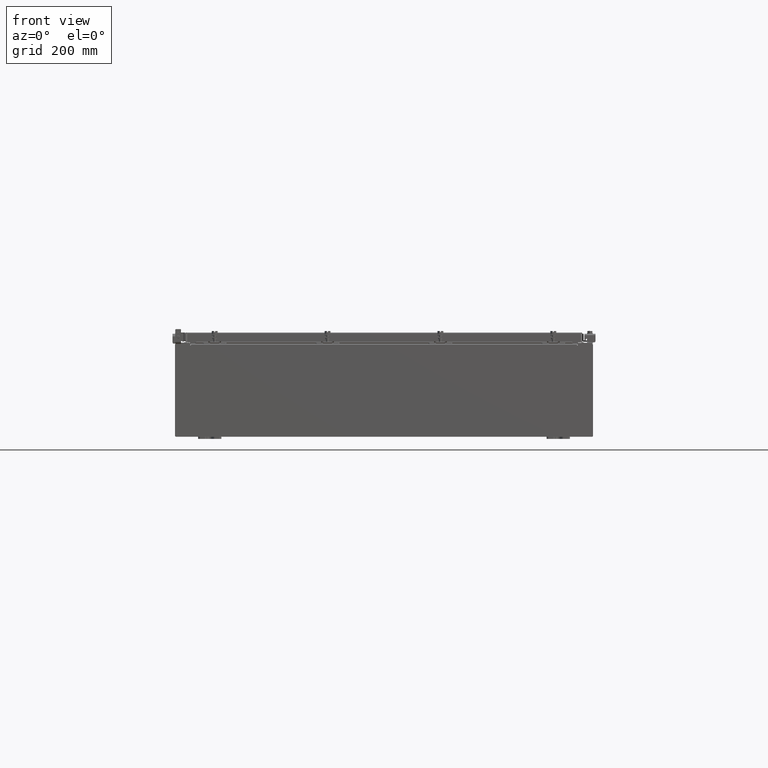
[diagram: clean part render]
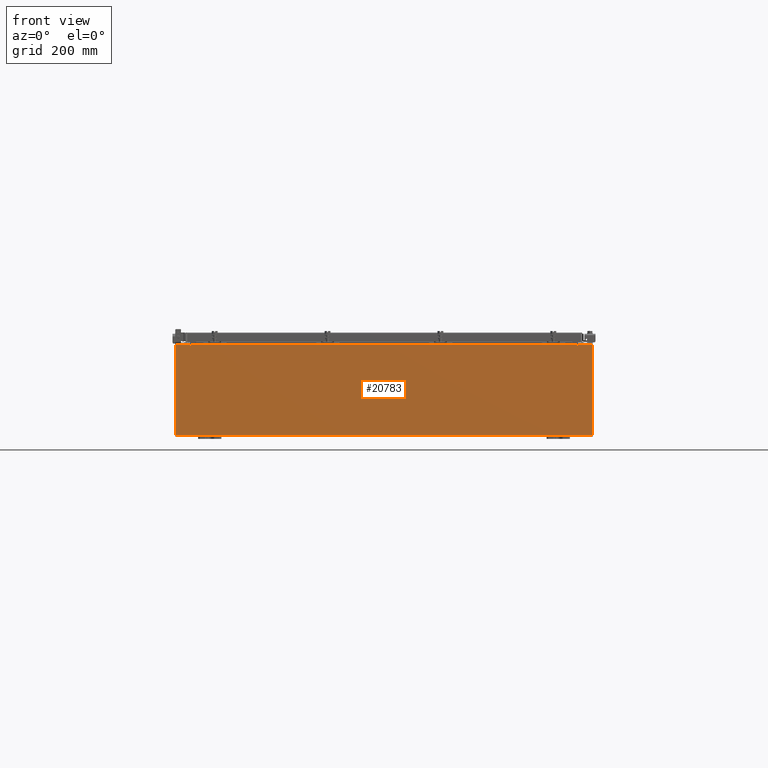
[diagram: same view with one face highlighted and labeled with its STEP entity id]
A machine part, front view. The second image highlights one B-rep face of the part: STEP entity #20783.
In plain terms, the highlighted planar face has unit normal (-0, 1, -0).
Its self-contained STEP definition (entity closure, byte-faithful):
#37 = VECTOR ( 'NONE', #10975, 39.37007874015748100 ) ;
#57 = CIRCLE ( 'NONE', #3972, 0.01867499999999949400 ) ;
#421 = LINE ( 'NONE', #1941, #10909 ) ;
#553 = CARTESIAN_POINT ( 'NONE',  ( -16.65587499999999800, 0.0000000000000000000, 3.874950000000000100 ) ) ;
#1320 = DIRECTION ( 'NONE',  ( 1.000000000000000000, 0.0000000000000000000, 0.0000000000000000000 ) ) ;
#1447 = EDGE_LOOP ( 'NONE', ( #24113, #19881, #26683, #6322, #8465, #13311, #19362, #5105, #16215, #16001, #23453, #18888 ) ) ;
#1646 = VERTEX_POINT ( 'NONE', #16572 ) ;
#1820 = CARTESIAN_POINT ( 'NONE',  ( 17.92530000000000400, 0.0000000000000000000, 3.925300000000000500 ) ) ;
#1941 = CARTESIAN_POINT ( 'NONE',  ( -17.92529999999999600, 0.0000000000000000000, -3.925299999999999100 ) ) ;
#2184 = VERTEX_POINT ( 'NONE', #9061 ) ;
#2439 = CARTESIAN_POINT ( 'NONE',  ( 16.63720000000000700, 0.0000000000000000000, 3.874950000000000100 ) ) ;
#2524 = EDGE_CURVE ( 'NONE', #13900, #13440, #4372, .T. ) ;
#2563 = CARTESIAN_POINT ( 'NONE',  ( 16.63720000000000700, 0.0000000000000000000, 0.0000000000000000000 ) ) ;
#2659 = DIRECTION ( 'NONE',  ( 0.0000000000000000000, 0.0000000000000000000, -1.000000000000000000 ) ) ;
#2819 = VERTEX_POINT ( 'NONE', #4083 ) ;
#3044 = CARTESIAN_POINT ( 'NONE',  ( 16.65587500000000500, 0.0000000000000000000, 3.874950000000000100 ) ) ;
#3173 = CARTESIAN_POINT ( 'NONE',  ( -17.92529999999999600, 0.0000000000000000000, 3.925300000000000500 ) ) ;
#3346 = CARTESIAN_POINT ( 'NONE',  ( -16.63719999999999600, -0.0000000000000000000, 3.874950000000000100 ) ) ;
#3483 = CARTESIAN_POINT ( 'NONE',  ( -16.63719999999999600, 3.756290991288361700E-016, 3.912300000000000100 ) ) ;
#3566 = DIRECTION ( 'NONE',  ( 1.000000000000000000, 0.0000000000000000000, 0.0000000000000000000 ) ) ;
#3637 = CARTESIAN_POINT ( 'NONE',  ( -17.92529999999999600, 0.0000000000000000000, 3.925300000000000500 ) ) ;
#3935 = LINE ( 'NONE', #6354, #14416 ) ;
#3972 = AXIS2_PLACEMENT_3D ( 'NONE', #553, #15251, #2659 ) ;
#4083 = CARTESIAN_POINT ( 'NONE',  ( 17.92530000000000400, 0.0000000000000000000, -3.925299999999999100 ) ) ;
#4372 = LINE ( 'NONE', #22869, #15554 ) ;
#5105 = ORIENTED_EDGE ( 'NONE', *, *, #24005, .T. ) ;
#5147 = DIRECTION ( 'NONE',  ( 0.0000000000000000000, 0.0000000000000000000, -1.000000000000000000 ) ) ;
#5821 = EDGE_CURVE ( 'NONE', #12177, #10671, #57, .T. ) ;
#5882 = CARTESIAN_POINT ( 'NONE',  ( -17.92529999999999600, 0.0000000000000000000, 3.925300000000000500 ) ) ;
#6281 = LINE ( 'NONE', #2563, #37 ) ;
#6322 = ORIENTED_EDGE ( 'NONE', *, *, #23962, .T. ) ;
#6354 = CARTESIAN_POINT ( 'NONE',  ( -17.92529999999999600, 0.0000000000000000000, 3.925300000000000500 ) ) ;
#6365 = PLANE ( 'NONE',  #25886 ) ;
#6726 = EDGE_CURVE ( 'NONE', #23837, #2819, #8200, .T. ) ;
#7645 = CARTESIAN_POINT ( 'NONE',  ( -16.63719999999999600, 3.756290991288361700E-016, 3.912300000000000100 ) ) ;
#7756 = FACE_OUTER_BOUND ( 'NONE', #1447, .T. ) ;
#8200 = LINE ( 'NONE', #1820, #13792 ) ;
#8437 = DIRECTION ( 'NONE',  ( 1.000000000000000000, 0.0000000000000000000, 0.0000000000000000000 ) ) ;
#8441 = DIRECTION ( 'NONE',  ( 0.0000000000000000000, -1.000000000000000000, 0.0000000000000000000 ) ) ;
#8465 = ORIENTED_EDGE ( 'NONE', *, *, #16462, .F. ) ;
#8732 = VERTEX_POINT ( 'NONE', #7645 ) ;
#9061 = CARTESIAN_POINT ( 'NONE',  ( 16.63720000000000700, 0.0000000000000000000, 3.912300000000000100 ) ) ;
#10589 = VECTOR ( 'NONE', #1320, 39.37007874015748100 ) ;
#10671 = VERTEX_POINT ( 'NONE', #18869 ) ;
#10909 = VECTOR ( 'NONE', #27154, 39.37007874015748100 ) ;
#10975 = DIRECTION ( 'NONE',  ( 0.0000000000000000000, 0.0000000000000000000, 1.000000000000000000 ) ) ;
#10993 = EDGE_CURVE ( 'NONE', #10671, #1646, #26699, .T. ) ;
#11261 = LINE ( 'NONE', #3483, #10589 ) ;
#11419 = CARTESIAN_POINT ( 'NONE',  ( 16.67455000000001100, 0.0000000000000000000, 3.925300000000000500 ) ) ;
#12177 = VERTEX_POINT ( 'NONE', #3346 ) ;
#12274 = VERTEX_POINT ( 'NONE', #24647 ) ;
#12367 = DIRECTION ( 'NONE',  ( -8.681145560800009800E-014, 0.0000000000000000000, -1.000000000000000000 ) ) ;
#12452 = EDGE_CURVE ( 'NONE', #22866, #1646, #3935, .T. ) ;
#13274 = LINE ( 'NONE', #3173, #23835 ) ;
#13311 = ORIENTED_EDGE ( 'NONE', *, *, #21092, .F. ) ;
#13440 = VERTEX_POINT ( 'NONE', #26928 ) ;
#13792 = VECTOR ( 'NONE', #20655, 39.37007874015748100 ) ;
#13900 = VERTEX_POINT ( 'NONE', #11419 ) ;
#14218 = LINE ( 'NONE', #27226, #25422 ) ;
#14416 = VECTOR ( 'NONE', #8437, 39.37007874015748100 ) ;
#14588 = DIRECTION ( 'NONE',  ( 0.0000000000000000000, 0.0000000000000000000, -1.000000000000000000 ) ) ;
#14626 = EDGE_CURVE ( 'NONE', #12274, #22866, #13274, .T. ) ;
#15251 = DIRECTION ( 'NONE',  ( -0.0000000000000000000, 1.000000000000000000, -0.0000000000000000000 ) ) ;
#15554 = VECTOR ( 'NONE', #12367, 39.37007874015748100 ) ;
#15561 = EDGE_CURVE ( 'NONE', #2819, #12274, #421, .T. ) ;
#16001 = ORIENTED_EDGE ( 'NONE', *, *, #15561, .T. ) ;
#16215 = ORIENTED_EDGE ( 'NONE', *, *, #6726, .T. ) ;
#16462 = EDGE_CURVE ( 'NONE', #17573, #2184, #6281, .T. ) ;
#16572 = CARTESIAN_POINT ( 'NONE',  ( -16.67454999999999600, 0.0000000000000000000, 3.925300000000000500 ) ) ;
#17573 = VERTEX_POINT ( 'NONE', #2439 ) ;
#17742 = DIRECTION ( 'NONE',  ( -0.0000000000000000000, 1.000000000000000000, -0.0000000000000000000 ) ) ;
#17794 = CARTESIAN_POINT ( 'NONE',  ( 17.92530000000000400, 0.0000000000000000000, 3.925300000000000500 ) ) ;
#17858 = DIRECTION ( 'NONE',  ( -0.0000000000000000000, -0.0000000000000000000, 1.000000000000000000 ) ) ;
#18869 = CARTESIAN_POINT ( 'NONE',  ( -16.67454999999999600, 0.0000000000000000000, 3.874950000000000100 ) ) ;
#18888 = ORIENTED_EDGE ( 'NONE', *, *, #12452, .T. ) ;
#19362 = ORIENTED_EDGE ( 'NONE', *, *, #2524, .F. ) ;
#19881 = ORIENTED_EDGE ( 'NONE', *, *, #5821, .F. ) ;
#20327 = DIRECTION ( 'NONE',  ( 0.0000000000000000000, 0.0000000000000000000, 1.000000000000000000 ) ) ;
#20496 = LINE ( 'NONE', #3637, #26087 ) ;
#20655 = DIRECTION ( 'NONE',  ( 0.0000000000000000000, 0.0000000000000000000, -1.000000000000000000 ) ) ;
#20783 = ADVANCED_FACE ( 'NONE', ( #7756 ), #6365, .F. ) ;
#21063 = CARTESIAN_POINT ( 'NONE',  ( 0.0000000000000000000, 0.0000000000000000000, 0.0000000000000000000 ) ) ;
#21092 = EDGE_CURVE ( 'NONE', #13440, #17573, #23542, .T. ) ;
#21759 = VECTOR ( 'NONE', #20327, 39.37007874015748100 ) ;
#22866 = VERTEX_POINT ( 'NONE', #5882 ) ;
#22869 = CARTESIAN_POINT ( 'NONE',  ( 16.67454999999967000, -0.0000000000000000000, -1.447541957108349400E-012 ) ) ;
#23194 = DIRECTION ( 'NONE',  ( 0.0000000000000000000, -0.0000000000000000000, -1.000000000000000000 ) ) ;
#23453 = ORIENTED_EDGE ( 'NONE', *, *, #14626, .T. ) ;
#23542 = CIRCLE ( 'NONE', #26782, 0.01867499999999949400 ) ;
#23835 = VECTOR ( 'NONE', #17858, 39.37007874015748100 ) ;
#23837 = VERTEX_POINT ( 'NONE', #17794 ) ;
#23962 = EDGE_CURVE ( 'NONE', #8732, #2184, #11261, .T. ) ;
#24005 = EDGE_CURVE ( 'NONE', #13900, #23837, #20496, .T. ) ;
#24113 = ORIENTED_EDGE ( 'NONE', *, *, #10993, .F. ) ;
#24647 = CARTESIAN_POINT ( 'NONE',  ( -17.92529999999999600, 0.0000000000000000000, -3.925299999999999100 ) ) ;
#25422 = VECTOR ( 'NONE', #14588, 39.37007874015748100 ) ;
#25618 = EDGE_CURVE ( 'NONE', #8732, #12177, #14218, .T. ) ;
#25886 = AXIS2_PLACEMENT_3D ( 'NONE', #21063, #8441, #23194 ) ;
#26087 = VECTOR ( 'NONE', #3566, 39.37007874015748100 ) ;
#26657 = CARTESIAN_POINT ( 'NONE',  ( -16.67454999999999600, -0.0000000000000000000, 0.0000000000000000000 ) ) ;
#26683 = ORIENTED_EDGE ( 'NONE', *, *, #25618, .F. ) ;
#26699 = LINE ( 'NONE', #26657, #21759 ) ;
#26782 = AXIS2_PLACEMENT_3D ( 'NONE', #3044, #17742, #5147 ) ;
#26928 = CARTESIAN_POINT ( 'NONE',  ( 16.67455000000000700, 0.0000000000000000000, 3.874950000000000100 ) ) ;
#27154 = DIRECTION ( 'NONE',  ( -1.000000000000000000, -0.0000000000000000000, -0.0000000000000000000 ) ) ;
#27226 = CARTESIAN_POINT ( 'NONE',  ( -16.63719999999999600, -0.0000000000000000000, 0.0000000000000000000 ) ) ;